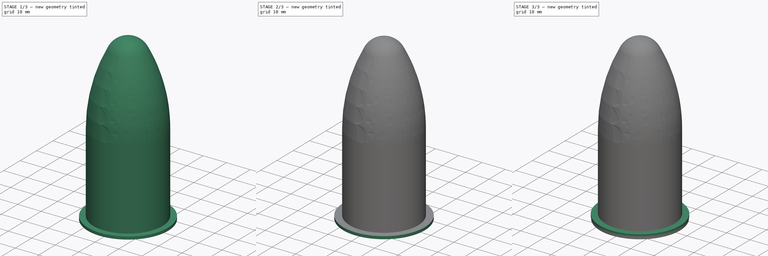
[diagram: build sequence overview — one tinted view per stage of 3, left to right]
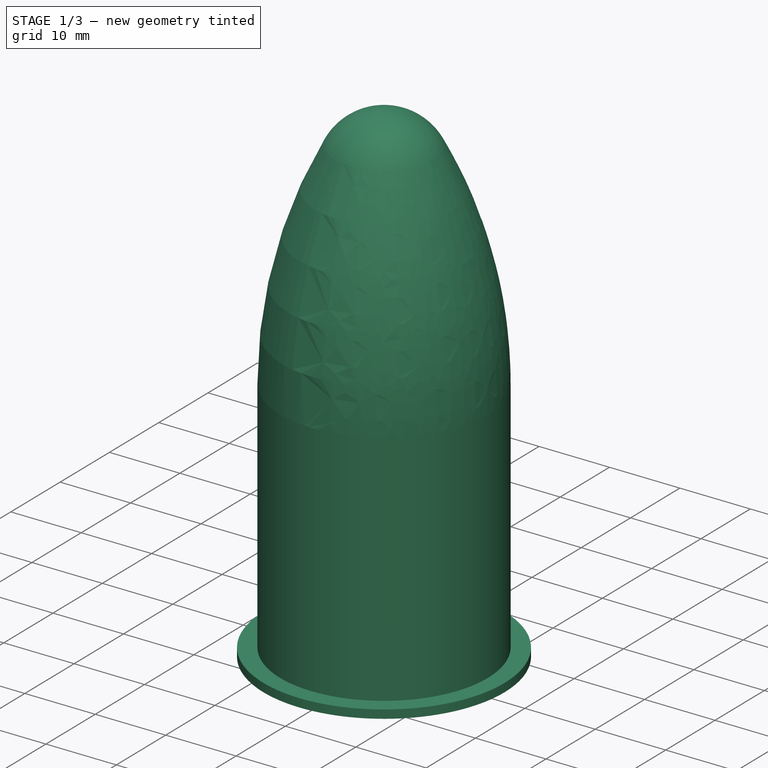
[diagram: stage 1 of 3 — iso view after this stage's code; geometry added in this stage tinted green]
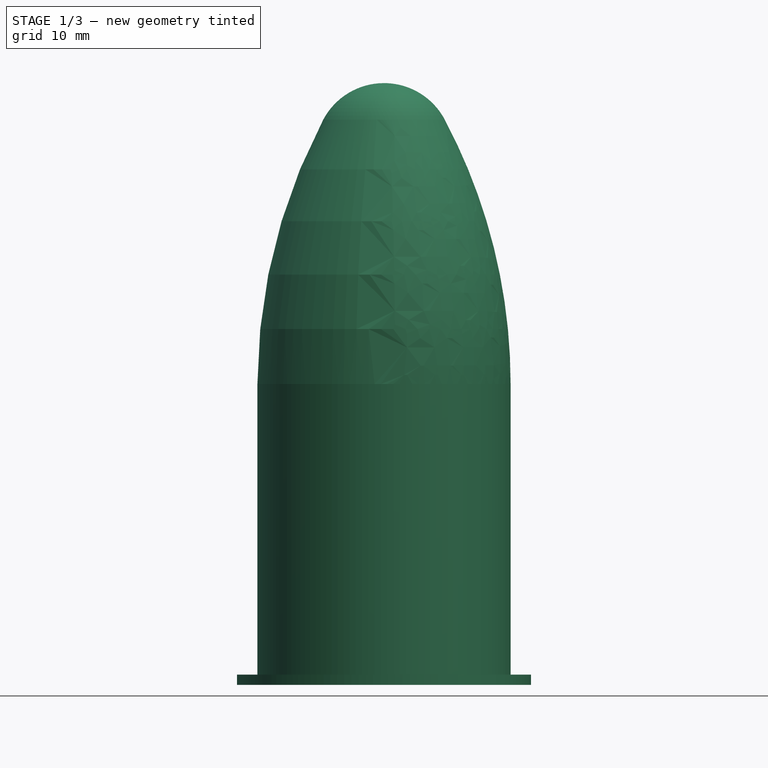
[diagram: stage 1 of 3 — front view after this stage's code; geometry added in this stage tinted green]
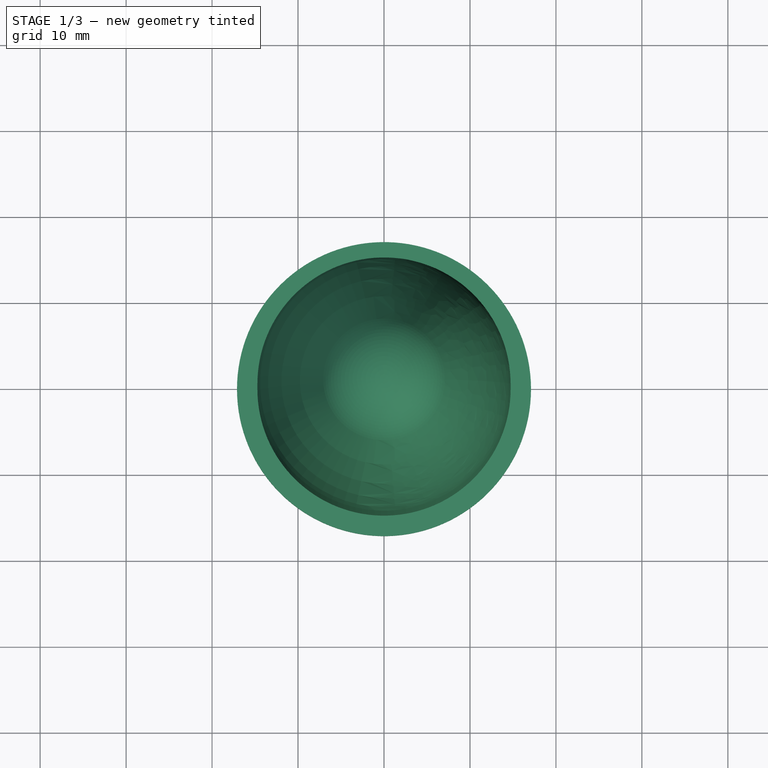
[diagram: stage 1 of 3 — top view after this stage's code; geometry added in this stage tinted green]
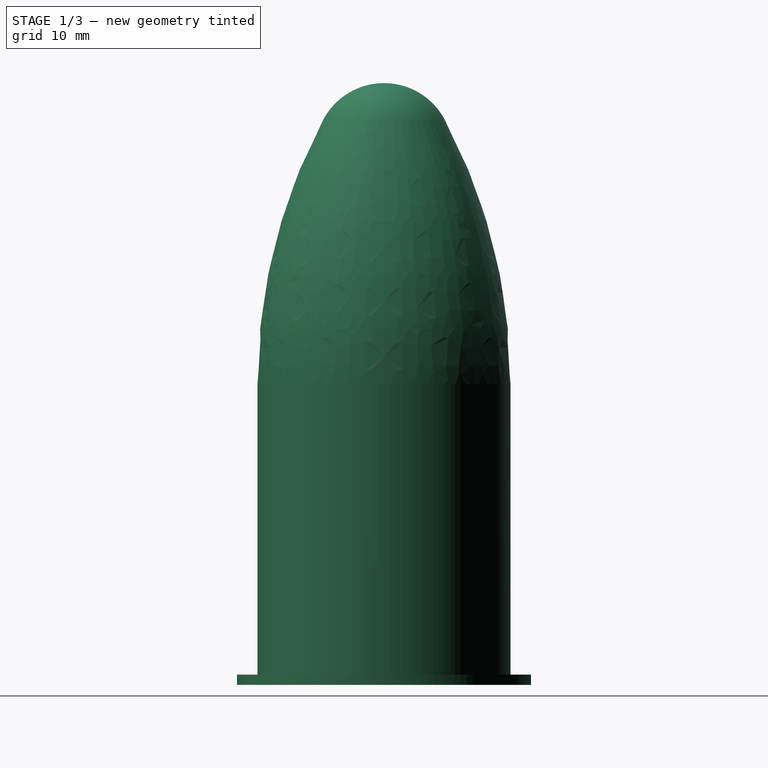
[diagram: stage 1 of 3 — right view after this stage's code; geometry added in this stage tinted green]
FCSTD DOCUMENT  (FreeCAD 0.18R16146 (Git))
Label: porta_filtros_linterna
License: CreativeCommons Attribution-NonCommercial
LicenseURL: http://creativecommons.org/licenses/by-nc/4.0/
objects: Sketcher::SketchObject×4, PartDesign::Pad×3, PartDesign::Body×3, PartDesign::AdditiveCylinder×1, PartDesign::Revolution×1
note: 17 computed .brp shape members not serialized (recipe doc carries the construction recipe); baked Part::Feature solids carry a one-line shape summary decoded from their .brp

FEATURE [PartDesign::Body] Body001  label="Filtro"
  Group = -> [Cylinder]
  Origin = -> Origin001
  Tip = -> Cylinder
FEATURE [Sketcher::SketchObject] Sketch002
  MapMode = 5
  Support = -> [XY_Plane002]
  expr: Constraints[2] = 17.1 * 2
  expr: Constraints[1] = 30.2 - 0.75
  sketch-geometry (2):
    g0: Circle CenterX=0 CenterY=0 CenterZ=0 NormalX=0 NormalY=0 NormalZ=1 AngleXU=0 Radius=14.725
    g1: Circle CenterX=0 CenterY=0 CenterZ=0 NormalX=0 NormalY=0 NormalZ=1 AngleXU=0 Radius=17.1
  constraints (4):
    c: Coincident(g0,g-1)
    c: Diameter(g0) = 29.45
    c: Diameter(g1) = 34.2
    c: Coincident(g1,g0)
FEATURE [PartDesign::Pad] Pad002
  Length = 1.2
  Length2 = 100
  Profile = -> Sketch002
  Type = 0
FEATURE [Sketcher::SketchObject] Sketch003
  MapMode = 5
  Placement = pos=(0,0,0) rot=(1,0,0;1.5708rad)
  Support = -> [XZ_Plane002]
  expr: Constraints[4] = 29.45 / 2
  sketch-geometry (8):
    g0: LineSegment StartX=14.725 StartY=0 StartZ=0 EndX=14.725 EndY=35 EndZ=0
    g1: ArcOfCircle CenterX=-50.8382 CenterY=35 CenterZ=0 NormalX=0 NormalY=0 NormalZ=1 AngleXU=0 Radius=65.5632 StartAngle=0 EndAngle=0.488214
    g2: ArcOfCircle CenterX=0 CenterY=62 CenterZ=0 NormalX=0 NormalY=0 NormalZ=1 AngleXU=0 Radius=8 StartAngle=0.488214 EndAngle=1.5708
    g3: LineSegment StartX=12.925 StartY=0 StartZ=0 EndX=12.925 EndY=35 EndZ=0
    g4: ArcOfCircle CenterX=-50.8382 CenterY=35 CenterZ=0 NormalX=0 NormalY=0 NormalZ=1 AngleXU=0 Radius=63.7632 StartAngle=0 EndAngle=0.488214
    g5: ArcOfCircle CenterX=0 CenterY=62 CenterZ=0 NormalX=0 NormalY=0 NormalZ=1 AngleXU=0 Radius=6.2 StartAngle=0.488214 EndAngle=1.5708
    g6: LineSegment StartX=12.925 StartY=0 StartZ=0 EndX=14.725 EndY=0 EndZ=0
    g7: LineSegment StartX=4e-16 StartY=70 StartZ=0 EndX=4e-16 EndY=68.2 EndZ=0
  constraints (23):
    c: PointOnObject(g0,g-1)
    c: Vertical(g0)
    c: Tangent(g0,g1) = -1.5708
    c: Tangent(g1,g2) = -1.5708
    c: DistanceX(g-1,g0) = 14.725
    c: PointOnObject(g2,g-2)
    c: Perpendicular(g2,g-2)
    c: DistanceY(g-1,g2) = 70
    c: Vertical(g3)
    c: Tangent(g3,g4) = -1.5708
    c: Tangent(g4,g5) = -1.5708
    c: Coincident(g6,g0)
    c: Horizontal(g6)
    c: Coincident(g3,g6)
    c: DistanceX(g3,g0) = 1.8
    c: Horizontal(g3,g0)
    c: Vertical(g5,g2)
    c: Distance(g4,g1) = 1.8
    c: Coincident(g7,g5)
    c: Coincident(g7,g2)
    c: Coincident(g2,g5)
    c: DistanceY(g3,g3) = 35
    c: DistanceY(g-1,g2) = 62
FEATURE [PartDesign::Revolution] Revolution
  Angle = 360
  Axis = (0,2e-16,1)
  Base = (0,0,0)
  BaseFeature = -> Pad002
  Profile = -> Sketch003
  ReferenceAxis = -> Sketch003 [V_Axis]
  Reversed = true
FEATURE [PartDesign::Body] Body002  label="tubo"
  Group = -> [Sketch002,Pad002,Sketch003,Revolution]
  Origin = -> Origin002
  Tip = -> Revolution
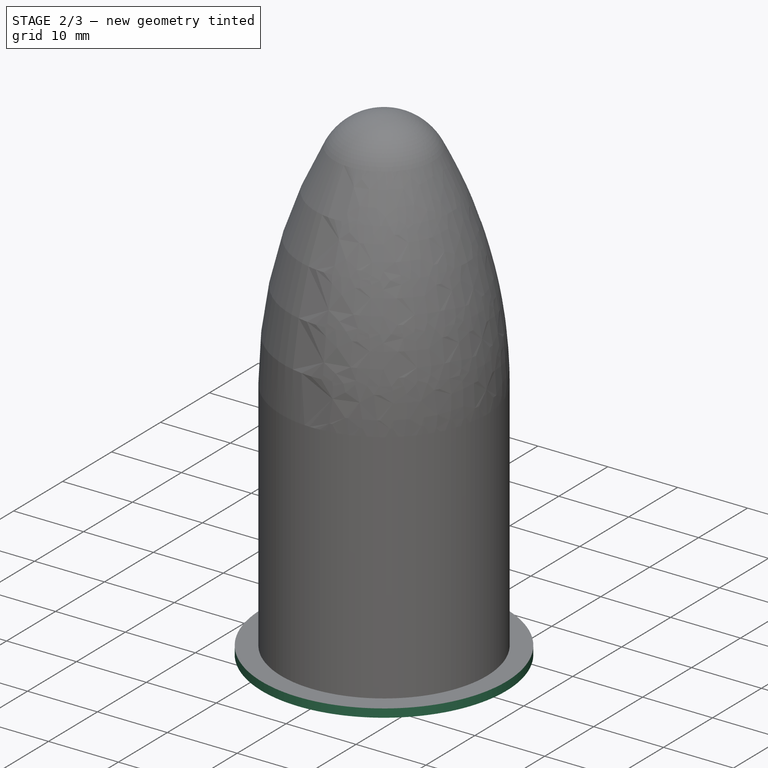
[diagram: stage 2 of 3 — iso view after this stage's code; geometry added in this stage tinted green]
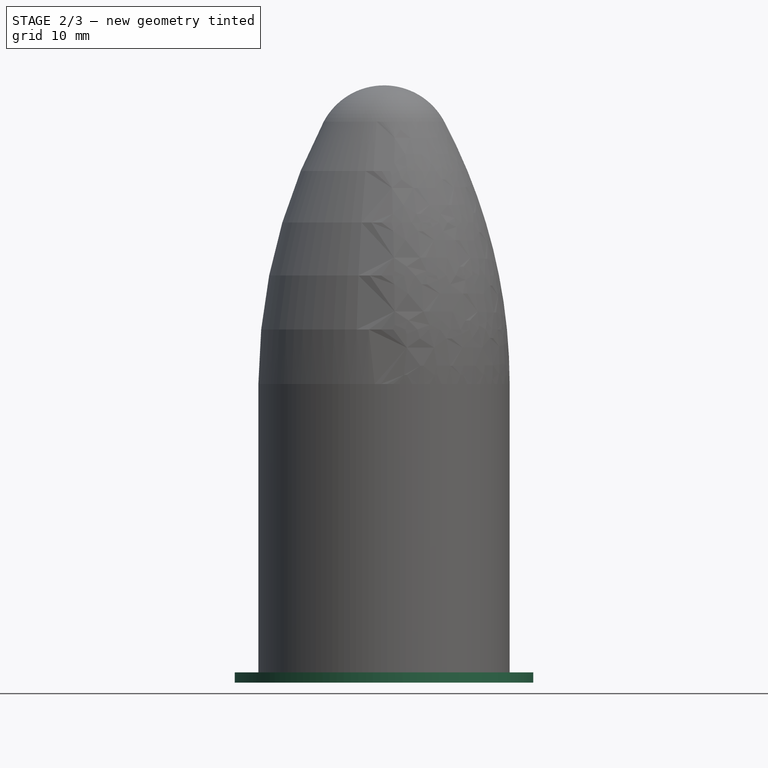
[diagram: stage 2 of 3 — front view after this stage's code; geometry added in this stage tinted green]
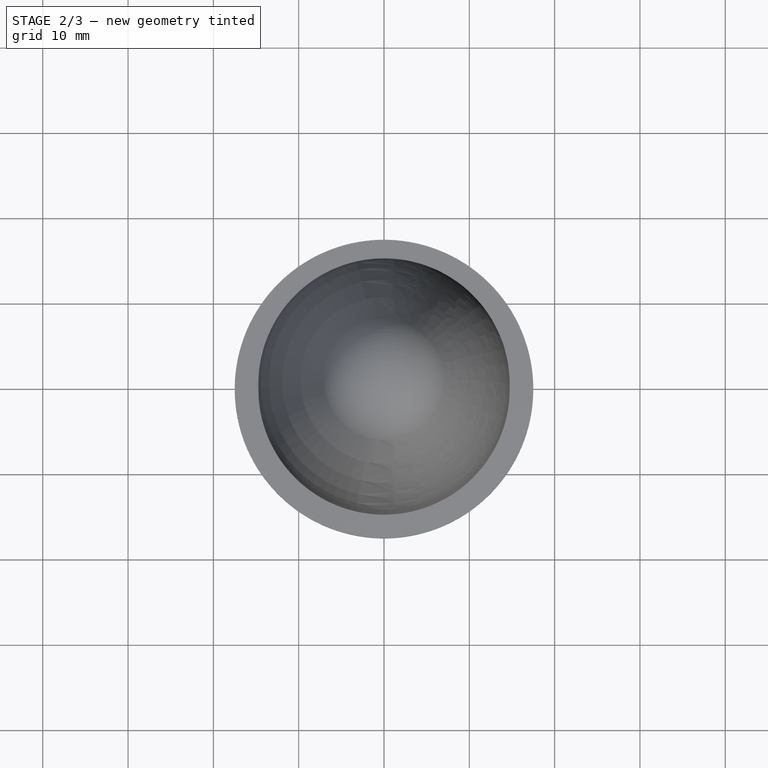
[diagram: stage 2 of 3 — top view after this stage's code; geometry added in this stage tinted green]
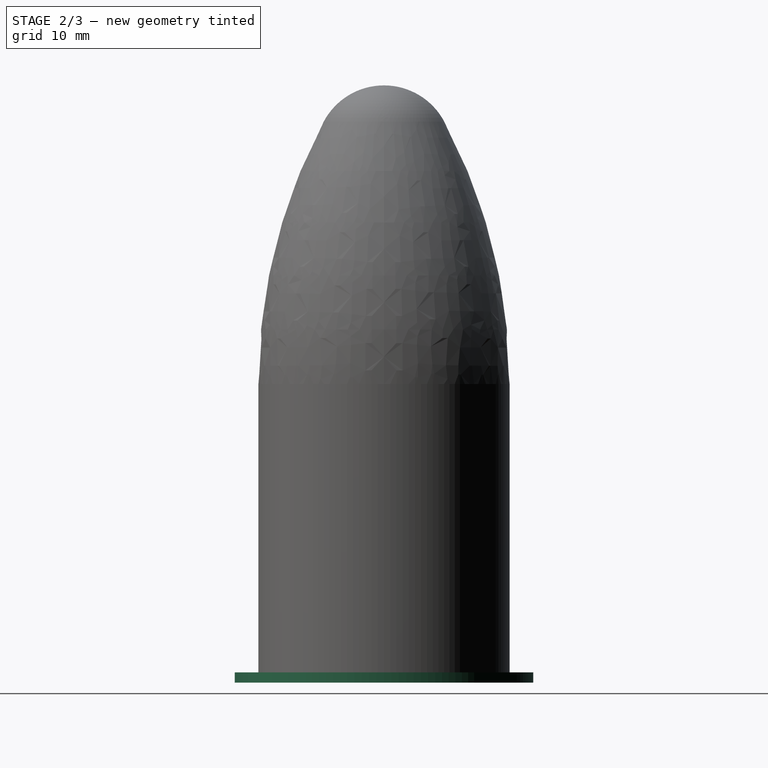
[diagram: stage 2 of 3 — right view after this stage's code; geometry added in this stage tinted green]
FEATURE [Sketcher::SketchObject] Sketch
  MapMode = 5
  Support = -> [XY_Plane]
  sketch-geometry (2):
    g0: Circle CenterX=0 CenterY=0 CenterZ=0 NormalX=0 NormalY=0 NormalZ=1 AngleXU=0 Radius=17.5
    g1: Circle CenterX=0 CenterY=0 CenterZ=0 NormalX=0 NormalY=0 NormalZ=1 AngleXU=0 Radius=15.1
  constraints (4):
    c: Coincident(g0,g-1)
    c: Diameter(g0) = 35
    c: Coincident(g1,g0)
    c: Diameter(g1) = 30.2
FEATURE [PartDesign::Pad] Pad
  Length = 1.2
  Length2 = 100
  Profile = -> Sketch
  Type = 0
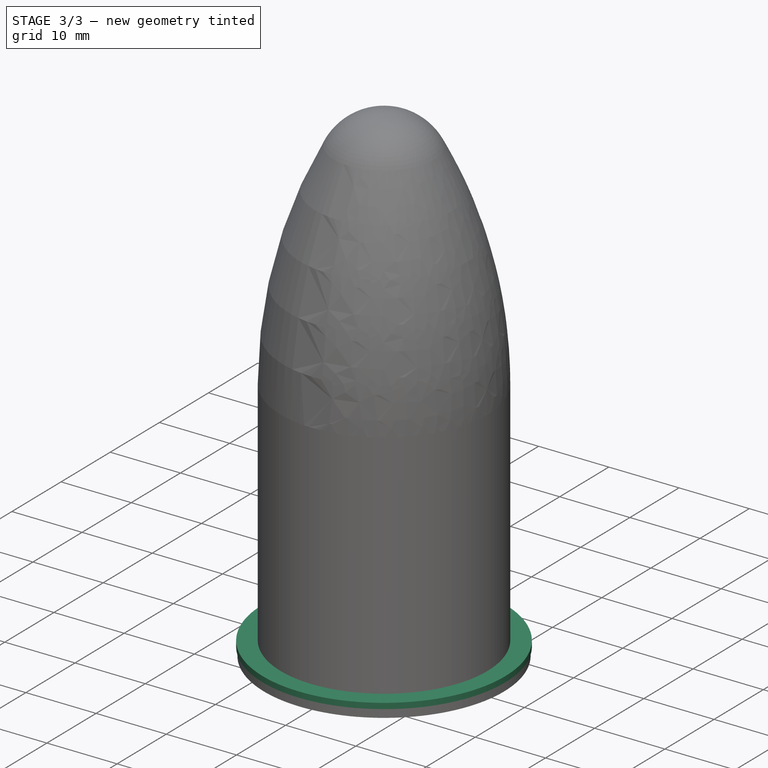
[diagram: stage 3 of 3 — iso view after this stage's code; geometry added in this stage tinted green]
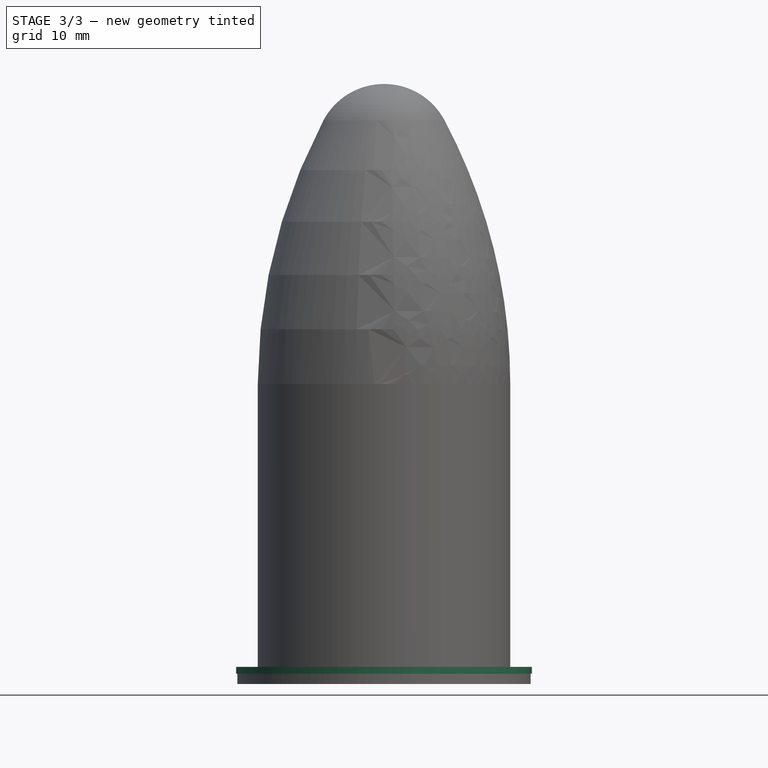
[diagram: stage 3 of 3 — front view after this stage's code; geometry added in this stage tinted green]
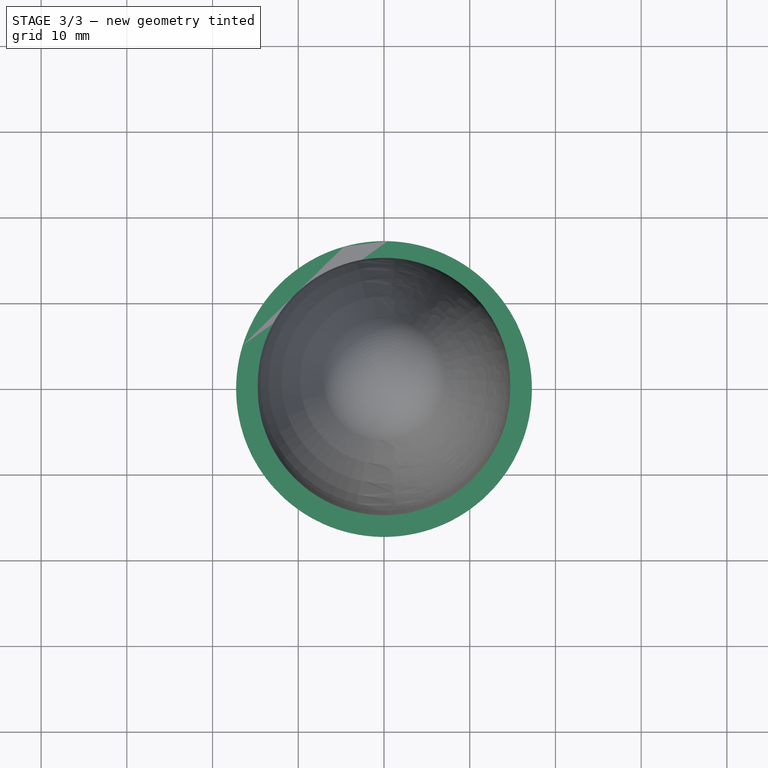
[diagram: stage 3 of 3 — top view after this stage's code; geometry added in this stage tinted green]
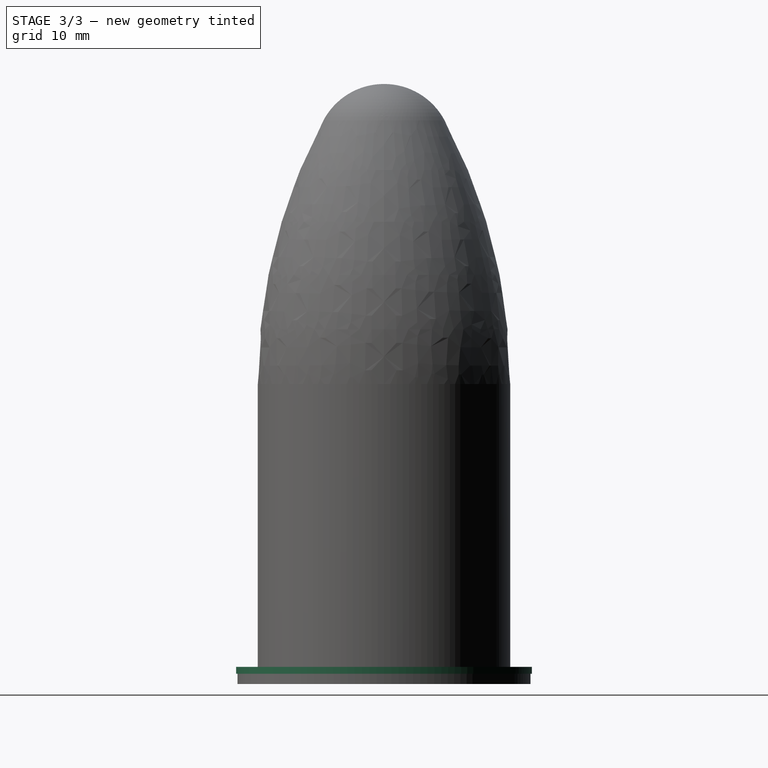
[diagram: stage 3 of 3 — right view after this stage's code; geometry added in this stage tinted green]
FEATURE [Sketcher::SketchObject] Sketch001
  MapMode = 5
  Support = -> [XY_Plane]
  sketch-geometry (2):
    g0: Circle CenterX=0 CenterY=0 CenterZ=0 NormalX=0 NormalY=0 NormalZ=1 AngleXU=0 Radius=17.5
    g1: Circle CenterX=0 CenterY=0 CenterZ=0 NormalX=0 NormalY=0 NormalZ=1 AngleXU=0 Radius=18.2
  constraints (4):
    c: Coincident(g0,g-1)
    c: Coincident(g1,g0)
    c: Diameter(g0) = 35
    c: Diameter(g1) = 36.4
FEATURE [PartDesign::Pad] Pad001
  BaseFeature = -> Pad
  Length = 10
  Length2 = 100
  Profile = -> Sketch001
  Type = 0
FEATURE [PartDesign::Body] Body  label="Adaptador"
  Group = -> [Sketch,Pad,Sketch001,Pad001]
  Origin = -> Origin
  Tip = -> Pad001
FEATURE [PartDesign::AdditiveCylinder] Cylinder
  Angle = 360
  AttacherType = Attacher::AttachEngine3D
  Height = 0.8
  MapMode = 5
  Placement = pos=(0,0,1.2) rot=(0,0,1;0rad)
  Radius = 17.25
  Support = -> [Pad001]
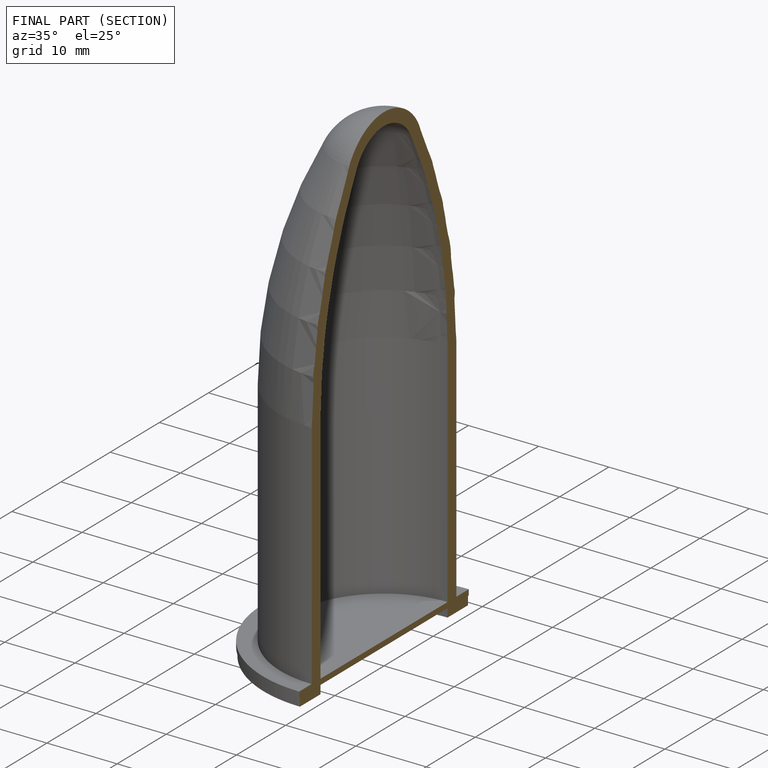
[diagram: finished part — half-section view (interior)]
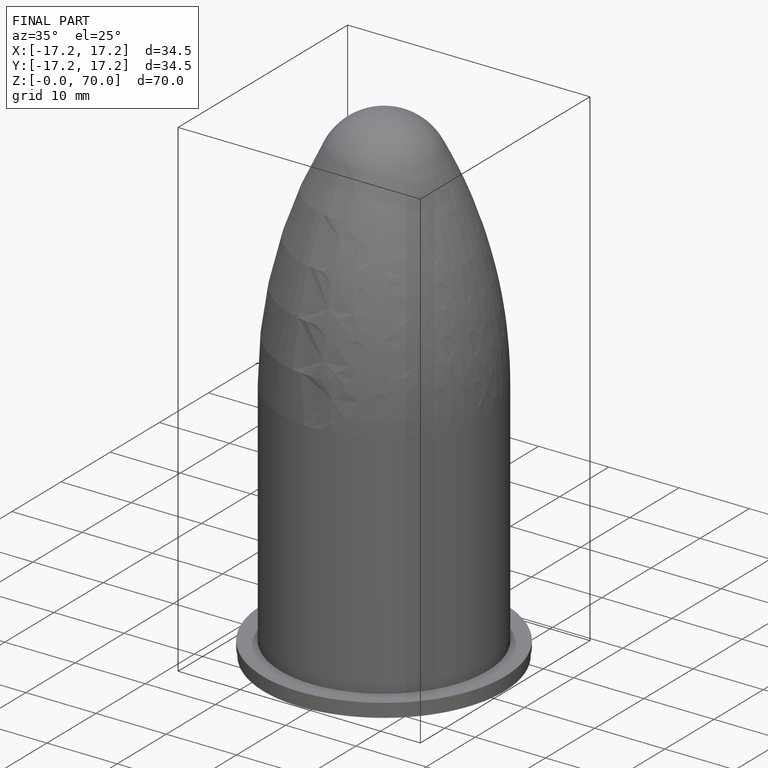
[diagram: finished part — iso view with bounding-box wireframe]
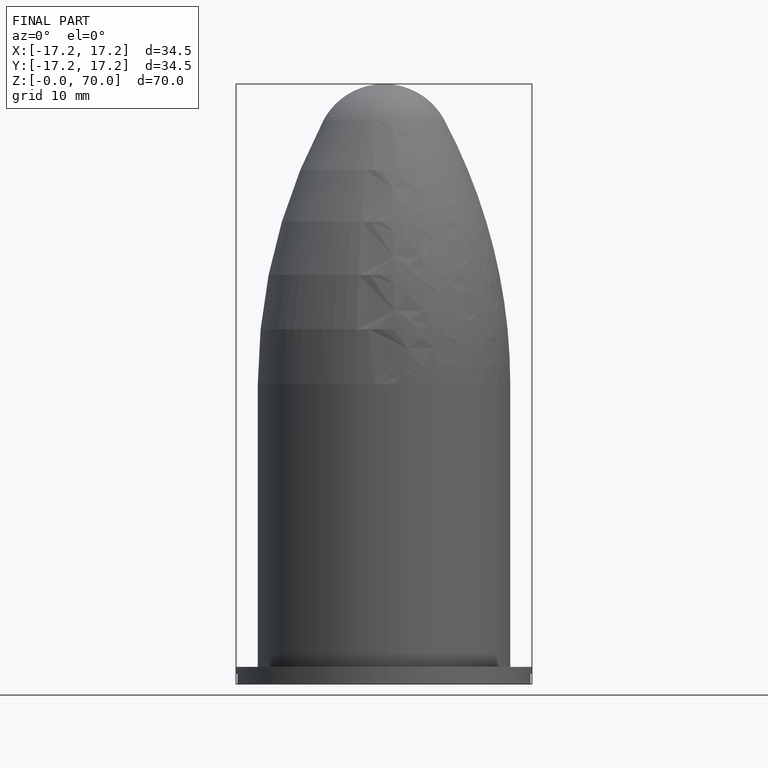
[diagram: finished part — front view with bounding-box wireframe]
